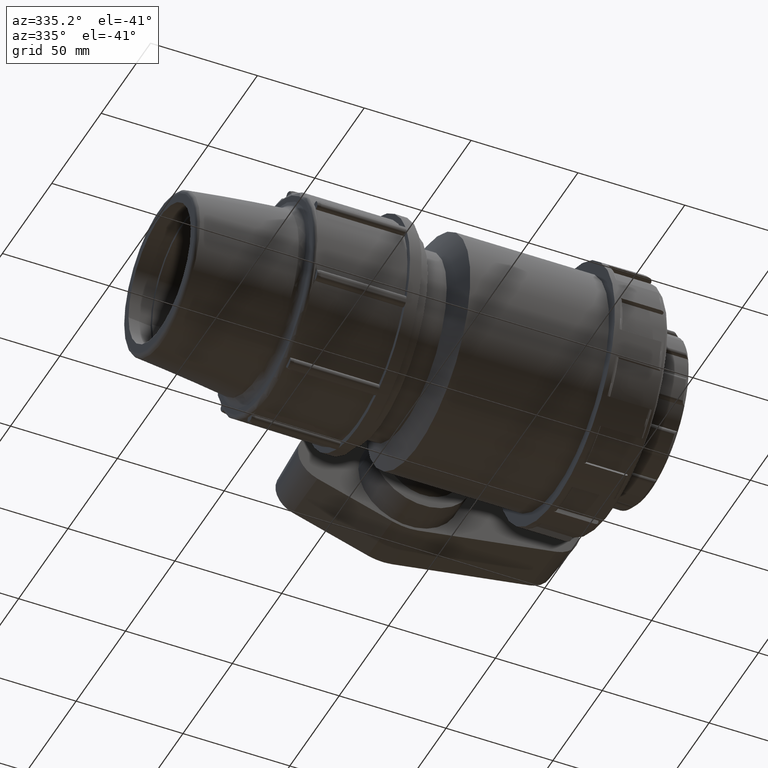
[diagram: clean part render]
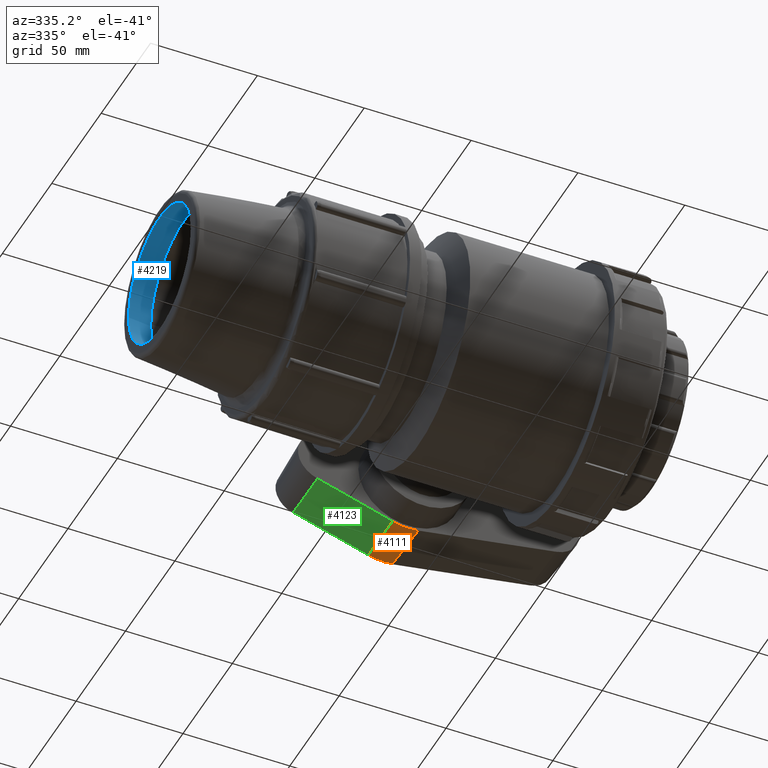
[diagram: same view with three faces highlighted in distinct colors, each labeled with its STEP entity id]
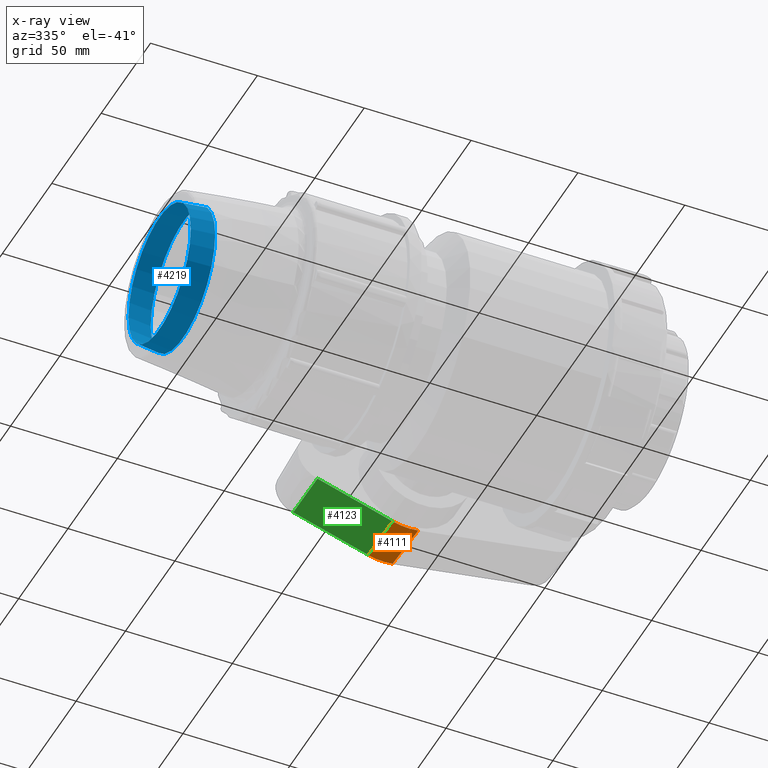
[diagram: x-ray of the same camera — body ghosted, the three highlighted faces saturated]
A machine part, auxiliary view with three faces highlighted in distinct colors.
The next image is the same camera in x-ray (body ghosted, the three faces saturated) — at least one of them is partly hidden behind the body in this view.
Their STEP definitions:

[orange] entity #4111 — the highlighted conical surface has half-angle 3 deg.
#26=CONICAL_SURFACE('',#4507,23.6,3.);
#491=FACE_OUTER_BOUND('',#747,.T.);
#747=EDGE_LOOP('',(#3282,#3283,#3284,#3285));
#996=LINE('',#7634,#1224);
#997=LINE('',#7637,#1225);
#1224=VECTOR('',#5400,25.4610764391089);
#1225=VECTOR('',#5403,25.4610764391089);
#1496=CIRCLE('',#4495,23.6562763685851);
#1504=CIRCLE('',#4508,24.9888061510006);
#1828=VERTEX_POINT('',#7600);
#1830=VERTEX_POINT('',#7606);
#1838=VERTEX_POINT('',#7633);
#1839=VERTEX_POINT('',#7635);
#2365=EDGE_CURVE('',#1828,#1830,#1496,.T.);
#2377=EDGE_CURVE('',#1828,#1838,#996,.T.);
#2378=EDGE_CURVE('',#1838,#1839,#1504,.T.);
#2379=EDGE_CURVE('',#1830,#1839,#997,.T.);
#3282=ORIENTED_EDGE('',*,*,#2365,.F.);
#3283=ORIENTED_EDGE('',*,*,#2377,.T.);
#3284=ORIENTED_EDGE('',*,*,#2378,.T.);
#3285=ORIENTED_EDGE('',*,*,#2379,.F.);
#4111=ADVANCED_FACE('',(#491),#26,.T.);
#4495=AXIS2_PLACEMENT_3D('',#7610,#5370,#5371);
#4507=AXIS2_PLACEMENT_3D('',#7632,#5398,#5399);
#4508=AXIS2_PLACEMENT_3D('',#7636,#5401,#5402);
#5370=DIRECTION('center_axis',(0.,1.,0.));
#5371=DIRECTION('ref_axis',(-0.0659500276682269,0.,-0.997822927102079));
#5398=DIRECTION('center_axis',(2.93266459334947E-16,-1.,0.));
#5399=DIRECTION('ref_axis',(1.,2.97139982259774E-16,0.));
#5400=DIRECTION('',(0.00925883483758258,-0.998629534754574,-0.051510448389756));
#5401=DIRECTION('center_axis',(-2.97139982259774E-16,1.,0.));
#5402=DIRECTION('ref_axis',(1.,2.97139982259774E-16,0.));
#5403=DIRECTION('',(-0.0159577334280807,-0.998629534754574,-0.0498437865706612));
#7600=CARTESIAN_POINT('',(4.18506838304804,104.926182918738,-23.2831401287733));
#7606=CARTESIAN_POINT('',(-7.21302483589936,104.926182918738,-22.5297954793997));
#7610=CARTESIAN_POINT('Origin',(-1.06858966120171E-14,104.926182918738,
0.));
#7632=CARTESIAN_POINT('Origin',(-1.22124532708767E-14,106.,0.));
#7633=CARTESIAN_POINT('',(4.42080828458484,79.5,-24.5946515926376));
#7634=CARTESIAN_POINT('',(4.1751124437781,106.,-23.2277514211301));
#7635=CARTESIAN_POINT('',(-7.61932590650664,79.5,-23.7988719392899));
#7636=CARTESIAN_POINT('Origin',(-4.44089209850063E-15,79.5,0.));
#7637=CARTESIAN_POINT('',(-7.19586563307495,106.,-22.4761989177603));

[blue] entity #4219 — the highlighted conical surface has half-angle 6.179 deg.
#32=CONICAL_SURFACE('',#4715,32.09,6.1786005318857);
#63=FACE_BOUND('',#877,.T.);
#599=FACE_OUTER_BOUND('',#876,.T.);
#876=EDGE_LOOP('',(#3892));
#877=EDGE_LOOP('',(#3893));
#1417=CIRCLE('',#4359,31.5);
#1604=CIRCLE('',#4716,32.68);
#1740=VERTEX_POINT('',#7099);
#2017=VERTEX_POINT('',#8684);
#2223=EDGE_CURVE('',#1740,#1740,#1417,.T.);
#2644=EDGE_CURVE('',#2017,#2017,#1604,.T.);
#3892=ORIENTED_EDGE('',*,*,#2644,.F.);
#3893=ORIENTED_EDGE('',*,*,#2223,.T.);
#4219=ADVANCED_FACE('',(#599,#63),#32,.F.);
#4359=AXIS2_PLACEMENT_3D('',#7100,#5055,#5056);
#4715=AXIS2_PLACEMENT_3D('',#8683,#5932,#5933);
#4716=AXIS2_PLACEMENT_3D('',#8685,#5934,#5935);
#5055=DIRECTION('center_axis',(-1.,0.,0.));
#5056=DIRECTION('ref_axis',(0.,0.,1.));
#5932=DIRECTION('center_axis',(1.,0.,0.));
#5933=DIRECTION('ref_axis',(0.,1.,0.));
#5934=DIRECTION('center_axis',(-1.,0.,0.));
#5935=DIRECTION('ref_axis',(0.,0.,1.));
#7099=CARTESIAN_POINT('',(-153.333333333333,31.5,0.));
#7100=CARTESIAN_POINT('Origin',(-153.333333333333,0.,0.));
#8683=CARTESIAN_POINT('Origin',(-147.883333333333,0.,0.));
#8684=CARTESIAN_POINT('',(-142.433333333333,32.68,0.));
#8685=CARTESIAN_POINT('Origin',(-142.433333333333,0.,0.));

[green] entity #4123 — the highlighted planar face has unit normal (-0.3045, 0.0523, -0.9511).
#150=PLANE('',#4528);
#503=FACE_OUTER_BOUND('',#761,.T.);
#761=EDGE_LOOP('',(#3343,#3344,#3345,#3346));
#993=LINE('',#7616,#1221);
#997=LINE('',#7637,#1225);
#1012=LINE('',#7683,#1240);
#1015=LINE('',#7690,#1243);
#1221=VECTOR('',#5377,36.8571566998867);
#1225=VECTOR('',#5403,25.4610764391089);
#1240=VECTOR('',#5452,36.8571566998867);
#1243=VECTOR('',#5461,25.4610764391089);
#1830=VERTEX_POINT('',#7606);
#1832=VERTEX_POINT('',#7612);
#1839=VERTEX_POINT('',#7635);
#1853=VERTEX_POINT('',#7681);
#2368=EDGE_CURVE('',#1830,#1832,#993,.T.);
#2379=EDGE_CURVE('',#1830,#1839,#997,.T.);
#2401=EDGE_CURVE('',#1839,#1853,#1012,.T.);
#2405=EDGE_CURVE('',#1832,#1853,#1015,.T.);
#3343=ORIENTED_EDGE('',*,*,#2368,.F.);
#3344=ORIENTED_EDGE('',*,*,#2379,.T.);
#3345=ORIENTED_EDGE('',*,*,#2401,.T.);
#3346=ORIENTED_EDGE('',*,*,#2405,.F.);
#4123=ADVANCED_FACE('',(#503),#150,.T.);
#4528=AXIS2_PLACEMENT_3D('',#7689,#5459,#5460);
#5377=DIRECTION('',(-0.952381310074591,-2.82990565580104E-16,0.304909560723514));
#5403=DIRECTION('',(-0.0159577334280807,-0.998629534754574,-0.0498437865706612));
#5452=DIRECTION('',(-0.952381310074591,-2.82990565580104E-16,0.304909560723514));
#5459=DIRECTION('center_axis',(-0.304491692767544,0.0523359562429436,-0.95107610458874));
#5460=DIRECTION('ref_axis',(0.952381310074591,0.,-0.304909560723514));
#5461=DIRECTION('',(-0.0159577334280807,-0.998629534754574,-0.0498437865706612));
#7606=CARTESIAN_POINT('',(-7.21302483589936,104.926182918738,-22.5297954793997));
#7612=CARTESIAN_POINT('',(-42.3150920193619,104.926182918738,-11.2916960205195));
#7616=CARTESIAN_POINT('',(-7.21302483589936,104.926182918738,-22.5297954793997));
#7635=CARTESIAN_POINT('',(-7.61932590650664,79.5,-23.7988719392899));
#7637=CARTESIAN_POINT('',(-7.19586563307495,106.,-22.4761989177603));
#7681=CARTESIAN_POINT('',(-42.7213930899692,79.5,-12.5607724804098));
#7683=CARTESIAN_POINT('',(-7.61932590650664,79.5,-23.7988719392899));
#7689=CARTESIAN_POINT('Origin',(-7.19586563307495,106.,-22.4761989177603));
#7690=CARTESIAN_POINT('',(-42.2979328165375,106.,-11.2380994588802));